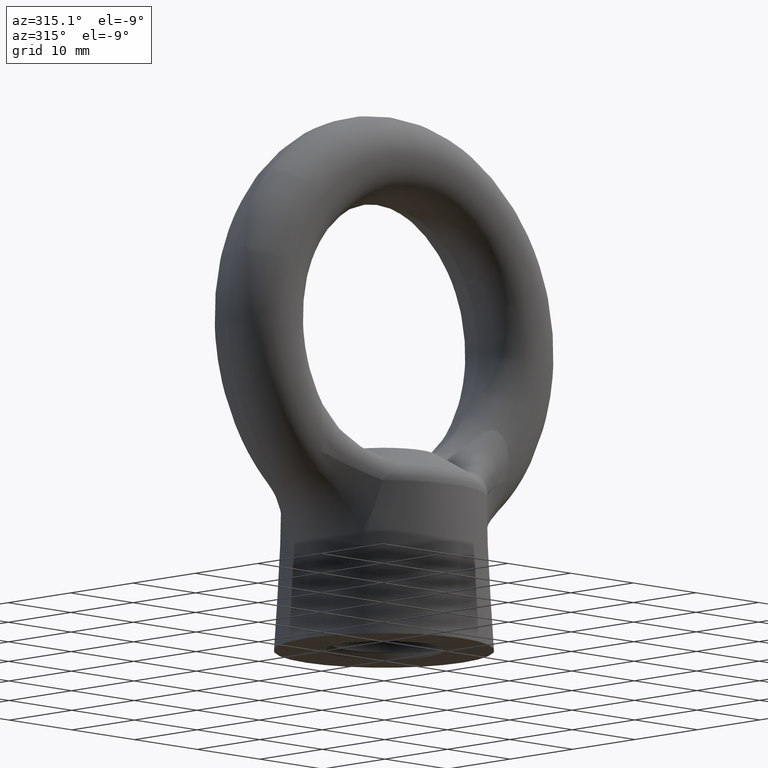
[diagram: clean part render]
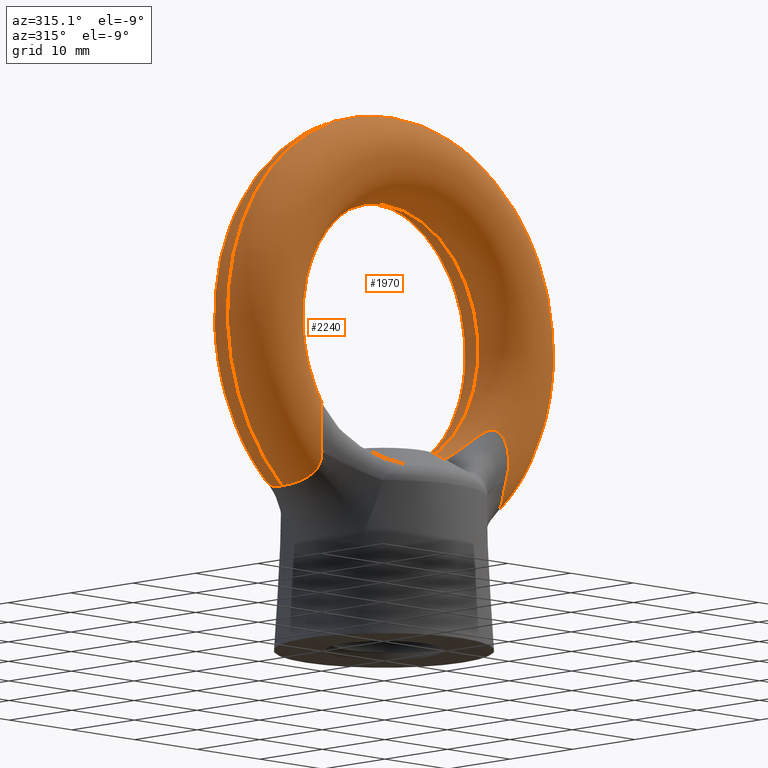
[diagram: same view with one multi-face feature highlighted, each face labeled with its STEP entity id]
A machine part, auxiliary view. The highlighted faces form ONE feature: a constant-radius fillet chain: 2 tangent blend faces with common blend radius 5 mm. The faces share edges in the B-rep.
Their STEP definitions:
[1] entity #1970 (Torus):
#1942 = EDGE_CURVE ( 'NONE', #1951, #1953, #2118, .T. ) ;
#1943 = ORIENTED_EDGE ( 'NONE', *, *, #1944, .T. ) ;
#1944 = EDGE_CURVE ( 'NONE', #1953, #1945, #2095, .T. ) ;
#1945 = VERTEX_POINT ( 'NONE', #2096 ) ;
#1946 = ORIENTED_EDGE ( 'NONE', *, *, #1947, .T. ) ;
#1947 = EDGE_CURVE ( 'NONE', #1945, #1948, #2052, .T. ) ;
#1948 = VERTEX_POINT ( 'NONE', #2051 ) ;
#1949 = ORIENTED_EDGE ( 'NONE', *, *, #1950, .T. ) ;
#1950 = EDGE_CURVE ( 'NONE', #1975, #1951, #2050, .T. ) ;
#1951 = VERTEX_POINT ( 'NONE', #2609 ) ;
#1952 = ORIENTED_EDGE ( 'NONE', *, *, #1942, .T. ) ;
#1953 = VERTEX_POINT ( 'NONE', #2610 ) ;
#1970 = ADVANCED_FACE ( 'NONE', ( #2634 ), #2645, .T. ) ;
#1971 = EDGE_LOOP ( 'NONE', ( #1972, #1949, #1952, #1943, #1946, #1982, #1985, #1988 ) ) ;
#1972 = ORIENTED_EDGE ( 'NONE', *, *, #1973, .T. ) ;
#1973 = EDGE_CURVE ( 'NONE', #1974, #1975, #2648, .T. ) ;
#1974 = VERTEX_POINT ( 'NONE', #2649 ) ;
#1975 = VERTEX_POINT ( 'NONE', #2650 ) ;
#1982 = ORIENTED_EDGE ( 'NONE', *, *, #1983, .F. ) ;
#1983 = EDGE_CURVE ( 'NONE', #1984, #1948, #2680, .T. ) ;
#1984 = VERTEX_POINT ( 'NONE', #2675 ) ;
#1985 = ORIENTED_EDGE ( 'NONE', *, *, #1986, .T. ) ;
#1986 = EDGE_CURVE ( 'NONE', #1984, #1987, #2674, .T. ) ;
#1987 = VERTEX_POINT ( 'NONE', #2673 ) ;
#1988 = ORIENTED_EDGE ( 'NONE', *, *, #1989, .T. ) ;
#1989 = EDGE_CURVE ( 'NONE', #1987, #1974, #2666, .T. ) ;
#2039 = DIRECTION ( 'NONE',  ( 0.0000000000000000000, 0.0000000000000000000, -1.000000000000000000 ) ) ;
#2040 = DIRECTION ( 'NONE',  ( 0.0000000000000000000, -1.000000000000000000, 0.0000000000000000000 ) ) ;
#2041 = CARTESIAN_POINT ( 'NONE',  ( 0.0000000000000000000, 0.0000000000000000000, 0.0000000000000000000 ) ) ;
#2042 = AXIS2_PLACEMENT_3D ( 'NONE', #2041, #2040, #2039 ) ;
#2044 = CARTESIAN_POINT ( 'NONE',  ( -6.000000000000000000, 0.0000000000000000000, -13.74772600000000000 ) ) ;
#2045 = CARTESIAN_POINT ( 'NONE',  ( -6.000001053483439200, -0.3504006684949155800, -13.74772662118588700 ) ) ;
#2046 = CARTESIAN_POINT ( 'NONE',  ( -6.020823813091262800, -0.7000108096584735100, -13.77859887902872800 ) ) ;
#2047 = CARTESIAN_POINT ( 'NONE',  ( -6.111031164038159600, -1.392009448283120500, -13.90070011183858500 ) ) ;
#2048 = CARTESIAN_POINT ( 'NONE',  ( -6.179245267279329200, -1.723825696552171000, -13.98982054532003800 ) ) ;
#2049 = CARTESIAN_POINT ( 'NONE',  ( -6.275957843287599800, -2.041516427262265200, -14.10231531665424000 ) ) ;
#2050 = CIRCLE ( 'NONE', #2042, 25.00000000000000000 ) ;
#2051 = CARTESIAN_POINT ( 'NONE',  ( -6.000000000000000000, 0.0000000000000000000, -13.74772600000000000 ) ) ;
#2052 = B_SPLINE_CURVE_WITH_KNOTS ( 'NONE', 3,
 ( #2049, #2048, #2047, #2046, #2045, #2044 ),
 .UNSPECIFIED., .F., .F.,
 ( 4, 2, 4 ),
 ( 0.006118880421807719100, 0.007165681863826861700, 0.008212483305846004400 ),
 .UNSPECIFIED. ) ;
#2053 = CARTESIAN_POINT ( 'NONE',  ( -6.275957843287599800, -2.041516427262265200, -14.10231531665424000 ) ) ;
#2054 = CARTESIAN_POINT ( 'NONE',  ( -7.464380430434879100, -2.117612692718215500, -13.61068639197021600 ) ) ;
#2055 = CARTESIAN_POINT ( 'NONE',  ( -8.574491774683616900, -2.219569914829596000, -12.99294310912969400 ) ) ;
#2056 = CARTESIAN_POINT ( 'NONE',  ( -10.14600203104698100, -2.460632772846056400, -11.92760678636409600 ) ) ;
#2057 = CARTESIAN_POINT ( 'NONE',  ( -10.65495594530064200, -2.555978702432028200, -11.54804303831719100 ) ) ;
#2058 = CARTESIAN_POINT ( 'NONE',  ( -11.40195170008093800, -2.742642528879202200, -10.96923635606276200 ) ) ;
#2059 = CARTESIAN_POINT ( 'NONE',  ( -11.64770598641046100, -2.812104536708752700, -10.77531281075047600 ) ) ;
#2060 = CARTESIAN_POINT ( 'NONE',  ( -12.13833255490675900, -2.974440291193269000, -10.39735897903072500 ) ) ;
#2061 = CARTESIAN_POINT ( 'NONE',  ( -12.38269268021770000, -3.066705127272793000, -10.21234248071219700 ) ) ;
#2062 = CARTESIAN_POINT ( 'NONE',  ( -12.76025384282492700, -3.238974660969921700, -9.965882244899035000 ) ) ;
#2063 = CARTESIAN_POINT ( 'NONE',  ( -12.88927141360312800, -3.302848360059870800, -9.888436531930478800 ) ) ;
#2064 = CARTESIAN_POINT ( 'NONE',  ( -13.15034356588402000, -3.445905336059170500, -9.759652248035307000 ) ) ;
#2065 = CARTESIAN_POINT ( 'NONE',  ( -13.28232192518950300, -3.524973401973400900, -9.707929309464558900 ) ) ;
#2066 = CARTESIAN_POINT ( 'NONE',  ( -13.48404425954607300, -3.659416046847749900, -9.668775220218695000 ) ) ;
#2067 = CARTESIAN_POINT ( 'NONE',  ( -13.55039615733267400, -3.705881197996473200, -9.662611704175235500 ) ) ;
#2068 = CARTESIAN_POINT ( 'NONE',  ( -13.68140375028516200, -3.802180139386393000, -9.667157612592872000 ) ) ;
#2069 = CARTESIAN_POINT ( 'NONE',  ( -13.74641067326361600, -3.852352900519645700, -9.678225946742477600 ) ) ;
#2070 = CARTESIAN_POINT ( 'NONE',  ( -13.92997332696168100, -4.000216795976052200, -9.737884824263305800 ) ) ;
#2071 = CARTESIAN_POINT ( 'NONE',  ( -14.04100569835554100, -4.098307660333234500, -9.814911206435743600 ) ) ;
#2072 = CARTESIAN_POINT ( 'NONE',  ( -14.22936297753960700, -4.273127124851955100, -10.01230862838729700 ) ) ;
#2073 = CARTESIAN_POINT ( 'NONE',  ( -14.30950039655987300, -4.352105367715709300, -10.13329455354461200 ) ) ;
#2074 = CARTESIAN_POINT ( 'NONE',  ( -14.44677695509736600, -4.490556973526294000, -10.39223456852681000 ) ) ;
#2075 = CARTESIAN_POINT ( 'NONE',  ( -14.50540418297563900, -4.551607850472104900, -10.53283025820037200 ) ) ;
#2076 = CARTESIAN_POINT ( 'NONE',  ( -14.65778503148669100, -4.711853808687573400, -10.96565057400457000 ) ) ;
#2077 = CARTESIAN_POINT ( 'NONE',  ( -14.73087022105523900, -4.790838918664097600, -11.27307851373483200 ) ) ;
#2095 = B_SPLINE_CURVE_WITH_KNOTS ( 'NONE', 3,
 ( #2115, #2114, #2113, #2112, #2111, #2110, #2109, #2077, #2076, #2075, #2074, #2073, #2072, #2071, #2070, #2069, #2068, #2067, #2066, #2065, #2064, #2063, #2062, #2061, #2060, #2059, #2058, #2057, #2056, #2055, #2054, #2053 ),
 .UNSPECIFIED., .F., .F.,
 ( 4, 2, 2, 2, 2, 2, 2, 2, 2, 2, 2, 2, 2, 2, 2, 4 ),
 ( 0.0000000000000000000, 0.001927165762978911600, 0.002890748644468364800, 0.003854331525957818000, 0.004817914407447270800, 0.005299705848191995800, 0.005781497288936720100, 0.006263288729681444300, 0.006504184450053805500, 0.006745080170426167600, 0.007226871611170889200, 0.007708663051915610000, 0.008672245933405051500, 0.009635828814894494700, 0.01156299457787337100, 0.01541732610383112800 ),
 .UNSPECIFIED. ) ;
#2096 = CARTESIAN_POINT ( 'NONE',  ( -6.275957843287599800, -2.041516427262265200, -14.10231531665424000 ) ) ;
#2097 = CARTESIAN_POINT ( 'NONE',  ( -14.72252079769030100, -4.822966256266339800, -15.41865053517110000 ) ) ;
#2098 = CARTESIAN_POINT ( 'NONE',  ( -14.66584500833733000, -4.777352851073325200, -15.70342730237507600 ) ) ;
#2099 = CARTESIAN_POINT ( 'NONE',  ( -14.63065959441152900, -4.717490013537113400, -15.98932534710245300 ) ) ;
#2100 = CARTESIAN_POINT ( 'NONE',  ( -14.62933149644081600, -4.590624520949909000, -16.41085302286467900 ) ) ;
#2101 = CARTESIAN_POINT ( 'NONE',  ( -14.63747687860612800, -4.542579712863749300, -16.54841272255716000 ) ) ;
#2102 = CARTESIAN_POINT ( 'NONE',  ( -14.67216269132205600, -4.432346829349788700, -16.81652764048325500 ) ) ;
#2103 = CARTESIAN_POINT ( 'NONE',  ( -14.69912034541589900, -4.369444319924478600, -16.94817947437561800 ) ) ;
#2104 = CARTESIAN_POINT ( 'NONE',  ( -14.80375577084290700, -4.162345419551519000, -17.31908120581014300 ) ) ;
#2105 = CARTESIAN_POINT ( 'NONE',  ( -14.90509121214267600, -3.998861685004786000, -17.53734320561205000 ) ) ;
#2106 = CARTESIAN_POINT ( 'NONE',  ( -15.13897591451736700, -3.621554648195874000, -17.92116365886865000 ) ) ;
#2107 = CARTESIAN_POINT ( 'NONE',  ( -15.26553775429907500, -3.416375608865718700, -18.07922319295189700 ) ) ;
#2108 = CARTESIAN_POINT ( 'NONE',  ( -15.51313406340040400, -2.974296753357123600, -18.35089302173337300 ) ) ;
#2109 = CARTESIAN_POINT ( 'NONE',  ( -14.84219633354092400, -4.909700346262882300, -11.90064704881108400 ) ) ;
#2110 = CARTESIAN_POINT ( 'NONE',  ( -14.87943419269992200, -4.948878862597283000, -12.21868437074895800 ) ) ;
#2111 = CARTESIAN_POINT ( 'NONE',  ( -14.92495029048519200, -4.996124343496267000, -12.86136253516889600 ) ) ;
#2112 = CARTESIAN_POINT ( 'NONE',  ( -14.93284021059053400, -5.003853662491141400, -13.18725509966724400 ) ) ;
#2113 = CARTESIAN_POINT ( 'NONE',  ( -14.91444565767801400, -4.987034312307317300, -14.15394021009256800 ) ) ;
#2114 = CARTESIAN_POINT ( 'NONE',  ( -14.84761841200832300, -4.923646427388950600, -14.79007712495285000 ) ) ;
#2115 = CARTESIAN_POINT ( 'NONE',  ( -14.72252079769030100, -4.822966256266339800, -15.41865053517110000 ) ) ;
#2118 = B_SPLINE_CURVE_WITH_KNOTS ( 'NONE', 3,
 ( #2126, #2125, #2124, #2123, #2122, #2121, #2120, #2119, #2108, #2107, #2106, #2105, #2104, #2103, #2102, #2101, #2100, #2099, #2098, #2097 ),
 .UNSPECIFIED., .F., .F.,
 ( 4, 2, 2, 2, 2, 2, 2, 2, 2, 4 ),
 ( 0.006961524194319999500, 0.007831742750575873200, 0.008701961306831746900, 0.009572179863087622300, 0.01044239841934349600, 0.01131261697559936600, 0.01218283553185523800, 0.01261794480998317300, 0.01305305408811110800, 0.01392327264436697000 ),
 .UNSPECIFIED. ) ;
#2119 = CARTESIAN_POINT ( 'NONE',  ( -15.63499233852098900, -2.736211218861019500, -18.46465395723157200 ) ) ;
#2120 = CARTESIAN_POINT ( 'NONE',  ( -15.85610475510484600, -2.231608999120303000, -18.65585043016069000 ) ) ;
#2121 = CARTESIAN_POINT ( 'NONE',  ( -15.95326624098749100, -1.970336504357997700, -18.73151674880357800 ) ) ;
#2122 = CARTESIAN_POINT ( 'NONE',  ( -16.11353689105055800, -1.429708466328234700, -18.85170928223997300 ) ) ;
#2123 = CARTESIAN_POINT ( 'NONE',  ( -16.17703360310367000, -1.148248934352556800, -18.89634054225160800 ) ) ;
#2124 = CARTESIAN_POINT ( 'NONE',  ( -16.26213081235134400, -0.5753946063262697100, -18.95542659569439400 ) ) ;
#2125 = CARTESIAN_POINT ( 'NONE',  ( -16.28345109991528600, -0.2881152364216809600, -18.96969215028720200 ) ) ;
#2126 = CARTESIAN_POINT ( 'NONE',  ( -16.28345109991528600, -9.641193019889547100E-014, -18.96969215028720200 ) ) ;
#2609 = CARTESIAN_POINT ( 'NONE',  ( -16.28345109991528600, -9.641193019889547100E-014, -18.96969215028720200 ) ) ;
#2610 = CARTESIAN_POINT ( 'NONE',  ( -14.72252079769030100, -4.822966256266339800, -15.41865053517110000 ) ) ;
#2634 = FACE_OUTER_BOUND ( 'NONE', #1971, .T. ) ;
#2645 = TOROIDAL_SURFACE ( 'NONE', #2739, 20.00000000000000000, 5.000000000000000000 ) ;
#2646 = DIRECTION ( 'NONE',  ( 0.0000000000000000000, -1.000000000000000000, 0.0000000000000000000 ) ) ;
#2647 = DIRECTION ( 'NONE',  ( 0.0000000000000000000, 0.0000000000000000000, -1.000000000000000000 ) ) ;
#2648 = B_SPLINE_CURVE_WITH_KNOTS ( 'NONE', 3,
 ( #2662, #2661, #2660, #2659, #2658, #2657, #2656, #2655, #2654, #2653, #2652, #2651, #2780, #2779, #2778, #2777, #2776, #2775 ),
 .UNSPECIFIED., .F., .F.,
 ( 4, 2, 2, 2, 2, 2, 2, 2, 4 ),
 ( 0.0000000000000000000, 0.0008701905242869358800, 0.001740381048573871800, 0.002610571572860807700, 0.003480762097147744400, 0.004350952621434683200, 0.005221143145721622400, 0.006091333670008559900, 0.006961524194295496500 ),
 .UNSPECIFIED. ) ;
#2649 = CARTESIAN_POINT ( 'NONE',  ( 14.72252079769030100, -4.822966256266339800, -15.41865053517104800 ) ) ;
#2650 = CARTESIAN_POINT ( 'NONE',  ( 16.28345109991528300, -2.424147133360036500E-011, -18.96969215028720200 ) ) ;
#2651 = CARTESIAN_POINT ( 'NONE',  ( 15.85430635181205100, -2.236049821398868900, -18.65437107218623000 ) ) ;
#2652 = CARTESIAN_POINT ( 'NONE',  ( 15.63391824742555900, -2.738321316443311100, -18.46364846882740500 ) ) ;
#2653 = CARTESIAN_POINT ( 'NONE',  ( 15.51282146924236300, -2.974989548728978600, -18.35068873651807300 ) ) ;
#2654 = CARTESIAN_POINT ( 'NONE',  ( 15.26334488783220800, -3.420154909407108400, -18.07667701494963100 ) ) ;
#2655 = CARTESIAN_POINT ( 'NONE',  ( 15.13327025881231900, -3.630757042081348200, -17.91306526511912300 ) ) ;
#2656 = CARTESIAN_POINT ( 'NONE',  ( 14.90199614143278600, -4.003856811007348200, -17.53095009435077100 ) ) ;
#2657 = CARTESIAN_POINT ( 'NONE',  ( 14.80163675530453200, -4.165873622868802300, -17.31409923680522300 ) ) ;
#2658 = CARTESIAN_POINT ( 'NONE',  ( 14.66255968027750400, -4.442490943718602200, -16.81598362251870400 ) ) ;
#2659 = CARTESIAN_POINT ( 'NONE',  ( 14.62837347272316400, -4.551351486170172900, -16.54274709727237200 ) ) ;
#2660 = CARTESIAN_POINT ( 'NONE',  ( 14.63123142479118100, -4.718577204383408700, -15.98427406103347300 ) ) ;
#2661 = CARTESIAN_POINT ( 'NONE',  ( 14.66610376605384900, -4.777561102616096500, -15.70212713193466500 ) ) ;
#2662 = CARTESIAN_POINT ( 'NONE',  ( 14.72252079769030100, -4.822966256266339800, -15.41865053517104800 ) ) ;
#2663 = CARTESIAN_POINT ( 'NONE',  ( 7.472187154787400600, -2.118112567573418500, -13.60745689133614000 ) ) ;
#2664 = CARTESIAN_POINT ( 'NONE',  ( 6.275957843287589100, -2.041516427262265200, -14.10231531665424000 ) ) ;
#2666 = B_SPLINE_CURVE_WITH_KNOTS ( 'NONE', 3,
 ( #2664, #2663, #2769, #2768, #2767, #2766, #2765, #2764, #2763, #2762, #2761, #2760, #2759, #2758, #2757, #2756, #2755, #2754, #2753, #2752, #2751, #2750, #2749, #2748, #2747, #2746, #2745, #2744, #2743, #2742, #2741, #2740 ),
 .UNSPECIFIED., .F., .F.,
 ( 4, 2, 2, 2, 2, 2, 2, 2, 2, 2, 2, 2, 2, 2, 2, 4 ),
 ( 0.0000000000000000000, 0.003833914589347098400, 0.005750871884020646000, 0.006709350531357417500, 0.007667829178694189800, 0.008147068502362572000, 0.008626307826030953400, 0.008865927487865146700, 0.009105547149699338300, 0.009584786473367726600, 0.01006402579703611700, 0.01054326512070450500, 0.01150174376804128300, 0.01246022241537806200, 0.01341870106271483800, 0.01533565835738839300 ),
 .UNSPECIFIED. ) ;
#2667 = CARTESIAN_POINT ( 'NONE',  ( 6.275957843287589100, -2.041516427262265200, -14.10231531665424000 ) ) ;
#2668 = CARTESIAN_POINT ( 'NONE',  ( 6.178498510641107400, -1.721372678838702900, -13.98895192801370300 ) ) ;
#2669 = CARTESIAN_POINT ( 'NONE',  ( 6.110860768015208500, -1.389994756660807300, -13.90045655270017400 ) ) ;
#2670 = CARTESIAN_POINT ( 'NONE',  ( 6.021490864335722100, -0.7058315180901160200, -13.77951462015350400 ) ) ;
#2671 = CARTESIAN_POINT ( 'NONE',  ( 6.000001057648353800, -0.3502639382569838200, -13.74772662717408300 ) ) ;
#2672 = CARTESIAN_POINT ( 'NONE',  ( 6.000000000000000000, 0.0000000000000000000, -13.74772599999995900 ) ) ;
#2673 = CARTESIAN_POINT ( 'NONE',  ( 6.275957843287589100, -2.041516427262265200, -14.10231531665424000 ) ) ;
#2674 = B_SPLINE_CURVE_WITH_KNOTS ( 'NONE', 3,
 ( #2672, #2671, #2670, #2669, #2668, #2667 ),
 .UNSPECIFIED., .F., .F.,
 ( 4, 2, 4 ),
 ( 0.008212483305846007800, 0.009258875969322748500, 0.01030526863279948900 ),
 .UNSPECIFIED. ) ;
#2675 = CARTESIAN_POINT ( 'NONE',  ( 6.000000000000000000, 0.0000000000000000000, -13.74772599999995900 ) ) ;
#2676 = DIRECTION ( 'NONE',  ( 0.0000000000000000000, 0.0000000000000000000, -1.000000000000000000 ) ) ;
#2677 = DIRECTION ( 'NONE',  ( 0.0000000000000000000, -1.000000000000000000, 0.0000000000000000000 ) ) ;
#2678 = CARTESIAN_POINT ( 'NONE',  ( 0.0000000000000000000, 6.123031769111886300E-016, 0.0000000000000000000 ) ) ;
#2679 = AXIS2_PLACEMENT_3D ( 'NONE', #2678, #2677, #2676 ) ;
#2680 = CIRCLE ( 'NONE', #2679, 15.00000000000000000 ) ;
#2738 = CARTESIAN_POINT ( 'NONE',  ( 0.0000000000000000000, 0.0000000000000000000, 0.0000000000000000000 ) ) ;
#2739 = AXIS2_PLACEMENT_3D ( 'NONE', #2738, #2646, #2647 ) ;
#2740 = CARTESIAN_POINT ( 'NONE',  ( 14.72252079769030100, -4.822966256266339800, -15.41865053517104800 ) ) ;
#2741 = CARTESIAN_POINT ( 'NONE',  ( 14.84699192031753000, -4.923142218807677200, -14.79322503485260800 ) ) ;
#2742 = CARTESIAN_POINT ( 'NONE',  ( 14.91437407874086700, -4.986964214495990300, -14.15033561141517100 ) ) ;
#2743 = CARTESIAN_POINT ( 'NONE',  ( 14.93280617157936900, -5.003824849340754000, -13.19270607076210000 ) ) ;
#2744 = CARTESIAN_POINT ( 'NONE',  ( 14.92534589907962200, -4.996522426846152800, -12.87380409717749800 ) ) ;
#2745 = CARTESIAN_POINT ( 'NONE',  ( 14.88117356690125000, -4.950696289192686500, -12.23670865798053800 ) ) ;
#2746 = CARTESIAN_POINT ( 'NONE',  ( 14.84416135551483700, -4.911782550447052900, -11.91596761111846400 ) ) ;
#2747 = CARTESIAN_POINT ( 'NONE',  ( 14.73512417999284500, -4.795395770896032400, -11.29304977852185300 ) ) ;
#2748 = CARTESIAN_POINT ( 'NONE',  ( 14.66424978608363200, -4.718802551309449800, -10.98970150071182100 ) ) ;
#2749 = CARTESIAN_POINT ( 'NONE',  ( 14.51408363811425600, -4.560668786097521900, -10.55496314559144900 ) ) ;
#2750 = CARTESIAN_POINT ( 'NONE',  ( 14.45694145201617100, -4.501054801352157900, -10.41513765315275800 ) ) ;
#2751 = CARTESIAN_POINT ( 'NONE',  ( 14.32287714716559000, -4.365390169574498100, -10.15539633988672500 ) ) ;
#2752 = CARTESIAN_POINT ( 'NONE',  ( 14.24442553985255200, -4.287724861736993600, -10.03294312786697500 ) ) ;
#2753 = CARTESIAN_POINT ( 'NONE',  ( 14.06002814782225100, -4.115449802587329800, -9.830814744492208500 ) ) ;
#2754 = CARTESIAN_POINT ( 'NONE',  ( 13.95107292998388900, -4.018358187132762700, -9.750092098752279700 ) ) ;
#2755 = CARTESIAN_POINT ( 'NONE',  ( 13.77050982104817200, -3.871343038238842700, -9.684082462623269500 ) ) ;
#2756 = CARTESIAN_POINT ( 'NONE',  ( 13.70655350336345700, -3.821378285055387500, -9.670687745704825000 ) ) ;
#2757 = CARTESIAN_POINT ( 'NONE',  ( 13.57606319705900700, -3.724268281963215400, -9.661706779109692900 ) ) ;
#2758 = CARTESIAN_POINT ( 'NONE',  ( 13.51014031328950300, -3.677516902615318300, -9.665868992098564800 ) ) ;
#2759 = CARTESIAN_POINT ( 'NONE',  ( 13.31014779231741900, -3.542455309985044200, -9.699284343762476700 ) ) ;
#2760 = CARTESIAN_POINT ( 'NONE',  ( 13.17660573178381100, -3.461327356116922000, -9.748858697209737300 ) ) ;
#2761 = CARTESIAN_POINT ( 'NONE',  ( 12.91652579003760300, -3.316943218285421500, -9.873231660203606100 ) ) ;
#2762 = CARTESIAN_POINT ( 'NONE',  ( 12.78740408833906800, -3.252144429731207000, -9.949277208171011500 ) ) ;
#2763 = CARTESIAN_POINT ( 'NONE',  ( 12.40734235102528300, -3.076608297474285400, -10.19432973658251400 ) ) ;
#2764 = CARTESIAN_POINT ( 'NONE',  ( 12.16132466835268600, -2.982783684948810100, -10.37997662712340300 ) ) ;
#2765 = CARTESIAN_POINT ( 'NONE',  ( 11.66707119319747000, -2.817836448227347000, -10.76009202470354100 ) ) ;
#2766 = CARTESIAN_POINT ( 'NONE',  ( 11.41907790785133500, -2.747298640502932300, -10.95583370094991000 ) ) ;
#2767 = CARTESIAN_POINT ( 'NONE',  ( 10.66977115892488100, -2.558963557144132000, -11.53681581326863900 ) ) ;
#2768 = CARTESIAN_POINT ( 'NONE',  ( 10.16135242115444400, -2.463325429355721000, -11.91660108581860600 ) ) ;
#2769 = CARTESIAN_POINT ( 'NONE',  ( 8.586629876469283200, -2.220769494238632500, -12.98588962887645500 ) ) ;
#2775 = CARTESIAN_POINT ( 'NONE',  ( 16.28345109991528300, -2.424147133360036500E-011, -18.96969215028720200 ) ) ;
#2776 = CARTESIAN_POINT ( 'NONE',  ( 16.28345109991409200, -0.2881059555160441800, -18.96969215028638800 ) ) ;
#2777 = CARTESIAN_POINT ( 'NONE',  ( 16.26169047657985800, -0.5796358468904664300, -18.95512738937299000 ) ) ;
#2778 = CARTESIAN_POINT ( 'NONE',  ( 16.17633058278103800, -1.151687238406585300, -18.89584578719895400 ) ) ;
#2779 = CARTESIAN_POINT ( 'NONE',  ( 16.11353423700545300, -1.429759351141434400, -18.85170930974551200 ) ) ;
#2780 = CARTESIAN_POINT ( 'NONE',  ( 15.95311681649572200, -1.970798574014857900, -18.73140267040128400 ) ) ;
[2] entity #2240 (Torus):
#1948 = VERTEX_POINT ( 'NONE', #2051 ) ;
#1950 = EDGE_CURVE ( 'NONE', #1975, #1951, #2050, .T. ) ;
#1951 = VERTEX_POINT ( 'NONE', #2609 ) ;
#1975 = VERTEX_POINT ( 'NONE', #2650 ) ;
#1983 = EDGE_CURVE ( 'NONE', #1984, #1948, #2680, .T. ) ;
#1984 = VERTEX_POINT ( 'NONE', #2675 ) ;
#1996 = VERTEX_POINT ( 'NONE', #2728 ) ;
#2039 = DIRECTION ( 'NONE',  ( 0.0000000000000000000, 0.0000000000000000000, -1.000000000000000000 ) ) ;
#2040 = DIRECTION ( 'NONE',  ( 0.0000000000000000000, -1.000000000000000000, 0.0000000000000000000 ) ) ;
#2041 = CARTESIAN_POINT ( 'NONE',  ( 0.0000000000000000000, 0.0000000000000000000, 0.0000000000000000000 ) ) ;
#2042 = AXIS2_PLACEMENT_3D ( 'NONE', #2041, #2040, #2039 ) ;
#2050 = CIRCLE ( 'NONE', #2042, 25.00000000000000000 ) ;
#2051 = CARTESIAN_POINT ( 'NONE',  ( -6.000000000000000000, 0.0000000000000000000, -13.74772600000000000 ) ) ;
#2089 = VERTEX_POINT ( 'NONE', #11159 ) ;
#2091 = EDGE_CURVE ( 'NONE', #1948, #2089, #11156, .T. ) ;
#2117 = EDGE_CURVE ( 'NONE', #1996, #1984, #11125, .T. ) ;
#2201 = EDGE_CURVE ( 'NONE', #2089, #2202, #2290, .T. ) ;
#2202 = VERTEX_POINT ( 'NONE', #2289 ) ;
#2203 = ORIENTED_EDGE ( 'NONE', *, *, #2204, .T. ) ;
#2204 = EDGE_CURVE ( 'NONE', #2202, #1951, #2337, .T. ) ;
#2240 = ADVANCED_FACE ( 'NONE', ( #2490 ), #2489, .T. ) ;
#2241 = EDGE_LOOP ( 'NONE', ( #2242, #2243, #2246, #2248, #2249, #2250, #2251, #2203 ) ) ;
#2242 = ORIENTED_EDGE ( 'NONE', *, *, #1950, .F. ) ;
#2243 = ORIENTED_EDGE ( 'NONE', *, *, #2244, .T. ) ;
#2244 = EDGE_CURVE ( 'NONE', #1975, #2245, #2484, .T. ) ;
#2245 = VERTEX_POINT ( 'NONE', #2483 ) ;
#2246 = ORIENTED_EDGE ( 'NONE', *, *, #2247, .T. ) ;
#2247 = EDGE_CURVE ( 'NONE', #2245, #1996, #2479, .T. ) ;
#2248 = ORIENTED_EDGE ( 'NONE', *, *, #2117, .T. ) ;
#2249 = ORIENTED_EDGE ( 'NONE', *, *, #1983, .T. ) ;
#2250 = ORIENTED_EDGE ( 'NONE', *, *, #2091, .T. ) ;
#2251 = ORIENTED_EDGE ( 'NONE', *, *, #2201, .T. ) ;
#2283 = CARTESIAN_POINT ( 'NONE',  ( -11.41907790785134900, 2.747298640502938000, -10.95583370094989600 ) ) ;
#2284 = CARTESIAN_POINT ( 'NONE',  ( -10.66977115892489500, 2.558963557144135600, -11.53681581326862600 ) ) ;
#2285 = CARTESIAN_POINT ( 'NONE',  ( -10.16135242115445800, 2.463325429355726300, -11.91660108581859800 ) ) ;
#2286 = CARTESIAN_POINT ( 'NONE',  ( -8.586629876469297400, 2.220769494238635100, -12.98588962887645500 ) ) ;
#2287 = CARTESIAN_POINT ( 'NONE',  ( -7.472187154787416600, 2.118112567573425100, -13.60745689133614000 ) ) ;
#2288 = CARTESIAN_POINT ( 'NONE',  ( -6.275957843287599800, 2.041516427262270100, -14.10231531665424000 ) ) ;
#2289 = CARTESIAN_POINT ( 'NONE',  ( -14.72252079769030100, 4.822966256266339800, -15.41865053517104800 ) ) ;
#2290 = B_SPLINE_CURVE_WITH_KNOTS ( 'NONE', 3,
 ( #2288, #2287, #2286, #2285, #2284, #2283, #2364, #2363, #2362, #2361, #2360, #2359, #2358, #2357, #2356, #2355, #2354, #2353, #2352, #2351, #2350, #2349, #2348, #2347, #2346, #2345, #2344, #2343, #2342, #2341, #2340, #2339 ),
 .UNSPECIFIED., .F., .F.,
 ( 4, 2, 2, 2, 2, 2, 2, 2, 2, 2, 2, 2, 2, 2, 2, 4 ),
 ( 0.0000000000000000000, 0.003833914589347104900, 0.005750871884020656400, 0.006709350531357432200, 0.007667829178694209700, 0.008147068502362598100, 0.008626307826030986400, 0.008865927487865179700, 0.009105547149699374700, 0.009584786473367763000, 0.01006402579703615100, 0.01054326512070454000, 0.01150174376804131500, 0.01246022241537809000, 0.01341870106271486600, 0.01533565835738842300 ),
 .UNSPECIFIED. ) ;
#2323 = CARTESIAN_POINT ( 'NONE',  ( -15.26334488783713200, 3.420154909398888300, -18.07667701495563200 ) ) ;
#2324 = CARTESIAN_POINT ( 'NONE',  ( -15.13327025881671500, 3.630757042074266700, -17.91306526512529700 ) ) ;
#2325 = CARTESIAN_POINT ( 'NONE',  ( -14.90199614143570800, 4.003856811002618700, -17.53095009435669700 ) ) ;
#2326 = CARTESIAN_POINT ( 'NONE',  ( -14.80163675530667600, 4.165873622865060400, -17.31409923681091500 ) ) ;
#2327 = CARTESIAN_POINT ( 'NONE',  ( -14.66255968027829000, 4.442490943716500800, -16.81598362252353600 ) ) ;
#2328 = CARTESIAN_POINT ( 'NONE',  ( -14.62837347272338700, 4.551351486168814900, -16.54274709727628000 ) ) ;
#2329 = CARTESIAN_POINT ( 'NONE',  ( -14.63123142479094200, 4.718577204382995700, -15.98427406103545700 ) ) ;
#2330 = CARTESIAN_POINT ( 'NONE',  ( -14.66610376605364900, 4.777561102615938400, -15.70212713193567000 ) ) ;
#2335 = CARTESIAN_POINT ( 'NONE',  ( -14.72252079769030100, 4.822966256266339800, -15.41865053517104800 ) ) ;
#2337 = B_SPLINE_CURVE_WITH_KNOTS ( 'NONE', 3,
 ( #2335, #2330, #2329, #2328, #2327, #2326, #2325, #2324, #2323, #2399, #2398, #2397, #2396, #2395, #2394, #2393, #2392, #2391 ),
 .UNSPECIFIED., .F., .F.,
 ( 4, 2, 2, 2, 2, 2, 2, 2, 4 ),
 ( 0.0000000000000000000, 0.0008701905242900003700, 0.001740381048580000700, 0.002610571572870000900, 0.003480762097160001500, 0.004350952621450000800, 0.005221143145740000100, 0.006091333670029999400, 0.006961524194319999500 ),
 .UNSPECIFIED. ) ;
#2339 = CARTESIAN_POINT ( 'NONE',  ( -14.72252079769030100, 4.822966256266339800, -15.41865053517104800 ) ) ;
#2340 = CARTESIAN_POINT ( 'NONE',  ( -14.84699192031753000, 4.923142218807678100, -14.79322503485261300 ) ) ;
#2341 = CARTESIAN_POINT ( 'NONE',  ( -14.91437407874087600, 4.986964214495990300, -14.15033561141517500 ) ) ;
#2342 = CARTESIAN_POINT ( 'NONE',  ( -14.93280617157937600, 5.003824849340755800, -13.19270607076210800 ) ) ;
#2343 = CARTESIAN_POINT ( 'NONE',  ( -14.92534589907962500, 4.996522426846154600, -12.87380409717750700 ) ) ;
#2344 = CARTESIAN_POINT ( 'NONE',  ( -14.88117356690125200, 4.950696289192686500, -12.23670865798054500 ) ) ;
#2345 = CARTESIAN_POINT ( 'NONE',  ( -14.84416135551484000, 4.911782550447056500, -11.91596761111848200 ) ) ;
#2346 = CARTESIAN_POINT ( 'NONE',  ( -14.73512417999285000, 4.795395770896036000, -11.29304977852186000 ) ) ;
#2347 = CARTESIAN_POINT ( 'NONE',  ( -14.66424978608364400, 4.718802551309454300, -10.98970150071183500 ) ) ;
#2348 = CARTESIAN_POINT ( 'NONE',  ( -14.51408363811426700, 4.560668786097529900, -10.55496314559146700 ) ) ;
#2349 = CARTESIAN_POINT ( 'NONE',  ( -14.45694145201618100, 4.501054801352164100, -10.41513765315277800 ) ) ;
#2350 = CARTESIAN_POINT ( 'NONE',  ( -14.32287714716560200, 4.365390169574508800, -10.15539633988674200 ) ) ;
#2351 = CARTESIAN_POINT ( 'NONE',  ( -14.24442553985255200, 4.287724861737003400, -10.03294312786699300 ) ) ;
#2352 = CARTESIAN_POINT ( 'NONE',  ( -14.06002814782225800, 4.115449802587340500, -9.830814744492220900 ) ) ;
#2353 = CARTESIAN_POINT ( 'NONE',  ( -13.95107292998390500, 4.018358187132775200, -9.750092098752285000 ) ) ;
#2354 = CARTESIAN_POINT ( 'NONE',  ( -13.77050982104819500, 3.871343038238856500, -9.684082462623267800 ) ) ;
#2355 = CARTESIAN_POINT ( 'NONE',  ( -13.70655350336347300, 3.821378285055403000, -9.670687745704830400 ) ) ;
#2356 = CARTESIAN_POINT ( 'NONE',  ( -13.57606319705902800, 3.724268281963230900, -9.661706779109696400 ) ) ;
#2357 = CARTESIAN_POINT ( 'NONE',  ( -13.51014031328951900, 3.677516902615336500, -9.665868992098566500 ) ) ;
#2358 = CARTESIAN_POINT ( 'NONE',  ( -13.31014779231743400, 3.542455309985062000, -9.699284343762474900 ) ) ;
#2359 = CARTESIAN_POINT ( 'NONE',  ( -13.17660573178383400, 3.461327356116936600, -9.748858697209728400 ) ) ;
#2360 = CARTESIAN_POINT ( 'NONE',  ( -12.91652579003761900, 3.316943218285433000, -9.873231660203599000 ) ) ;
#2361 = CARTESIAN_POINT ( 'NONE',  ( -12.78740408833908800, 3.252144429731215400, -9.949277208170995500 ) ) ;
#2362 = CARTESIAN_POINT ( 'NONE',  ( -12.40734235102530500, 3.076608297474292500, -10.19432973658249800 ) ) ;
#2363 = CARTESIAN_POINT ( 'NONE',  ( -12.16132466835269800, 2.982783684948813200, -10.37997662712338700 ) ) ;
#2364 = CARTESIAN_POINT ( 'NONE',  ( -11.66707119319749200, 2.817836448227348800, -10.76009202470352500 ) ) ;
#2391 = CARTESIAN_POINT ( 'NONE',  ( -16.28345109991528600, -9.641193019889547100E-014, -18.96969215028720200 ) ) ;
#2392 = CARTESIAN_POINT ( 'NONE',  ( -16.28345109991529000, 0.2881059554926730900, -18.96969215028720200 ) ) ;
#2393 = CARTESIAN_POINT ( 'NONE',  ( -16.26169047658216700, 0.5796358468679231300, -18.95512738937456000 ) ) ;
#2394 = CARTESIAN_POINT ( 'NONE',  ( -16.17633058278503500, 1.151687238386844800, -18.89584578720177200 ) ) ;
#2395 = CARTESIAN_POINT ( 'NONE',  ( -16.11353423701007900, 1.429759351123022900, -18.85170930974884800 ) ) ;
#2396 = CARTESIAN_POINT ( 'NONE',  ( -15.95311681650125600, 1.970798573998991700, -18.73140267040557600 ) ) ;
#2397 = CARTESIAN_POINT ( 'NONE',  ( -15.85430635181788300, 2.236049821384214800, -18.65437107219097300 ) ) ;
#2398 = CARTESIAN_POINT ( 'NONE',  ( -15.63391824743136700, 2.738321316431448200, -18.46364846883273400 ) ) ;
#2399 = CARTESIAN_POINT ( 'NONE',  ( -15.51282146924797100, 2.974989548718390600, -18.35068873652364400 ) ) ;
#2475 = CARTESIAN_POINT ( 'NONE',  ( 16.11353689105519400, 1.429708466309784300, -18.85170928224332000 ) ) ;
#2476 = CARTESIAN_POINT ( 'NONE',  ( 16.17703360310770600, 1.148248934332444500, -18.89634054225444300 ) ) ;
#2477 = CARTESIAN_POINT ( 'NONE',  ( 16.26213081235359000, 0.5753946063040522600, -18.95542659569591500 ) ) ;
#2479 = B_SPLINE_CURVE_WITH_KNOTS ( 'NONE', 3,
 ( #2536, #2535, #2534, #2533, #2532, #2531, #2530, #2529, #2528, #2527, #2526, #2525, #2524, #2523, #2522, #2521, #2520, #2519, #2518, #2517, #2516, #2515, #2514, #2513, #2512, #2511, #2510, #2509, #2508, #2507, #2506, #2505 ),
 .UNSPECIFIED., .F., .F.,
 ( 4, 2, 2, 2, 2, 2, 2, 2, 2, 2, 2, 2, 2, 2, 2, 4 ),
 ( 0.0000000000000000000, 0.001927165762978870200, 0.002890748644468307600, 0.003854331525957745100, 0.004817914407447183200, 0.005299705848191900400, 0.005781497288936619400, 0.006263288729681337600, 0.006504184450053696200, 0.006745080170426055700, 0.007226871611170777300, 0.007708663051915499000, 0.008672245933404942200, 0.009635828814894387100, 0.01156299457787326800, 0.01541732610383102900 ),
 .UNSPECIFIED. ) ;
#2481 = CARTESIAN_POINT ( 'NONE',  ( 16.28345109991648300, 0.2881152363984068600, -18.96969215028801500 ) ) ;
#2482 = CARTESIAN_POINT ( 'NONE',  ( 16.28345109991528300, -2.424147133360036500E-011, -18.96969215028720200 ) ) ;
#2483 = CARTESIAN_POINT ( 'NONE',  ( 14.72252079769030100, 4.822966256266339800, -15.41865053517104800 ) ) ;
#2484 = B_SPLINE_CURVE_WITH_KNOTS ( 'NONE', 3,
 ( #2482, #2481, #2477, #2476, #2475, #2551, #2550, #2549, #2548, #2547, #2546, #2545, #2544, #2543, #2542, #2541, #2540, #2539, #2538, #2537 ),
 .UNSPECIFIED., .F., .F.,
 ( 4, 2, 2, 2, 2, 2, 2, 2, 2, 4 ),
 ( 0.006961524194295496500, 0.007831742750554435500, 0.008701961306813374400, 0.009572179863072311600, 0.01044239841933124900, 0.01131261697559019000, 0.01218283553184913000, 0.01261794480997860600, 0.01305305408810808100, 0.01392327264436702000 ),
 .UNSPECIFIED. ) ;
#2485 = DIRECTION ( 'NONE',  ( 0.0000000000000000000, 0.0000000000000000000, -1.000000000000000000 ) ) ;
#2486 = DIRECTION ( 'NONE',  ( 0.0000000000000000000, -1.000000000000000000, 0.0000000000000000000 ) ) ;
#2487 = CARTESIAN_POINT ( 'NONE',  ( 0.0000000000000000000, 0.0000000000000000000, 0.0000000000000000000 ) ) ;
#2488 = AXIS2_PLACEMENT_3D ( 'NONE', #2487, #2486, #2485 ) ;
#2489 = TOROIDAL_SURFACE ( 'NONE', #2488, 20.00000000000000000, 5.000000000000000000 ) ;
#2490 = FACE_OUTER_BOUND ( 'NONE', #2241, .T. ) ;
#2505 = CARTESIAN_POINT ( 'NONE',  ( 6.275957843287599800, 2.041516427262265200, -14.10231531665424000 ) ) ;
#2506 = CARTESIAN_POINT ( 'NONE',  ( 7.464380430434877300, 2.117612692718215100, -13.61068639197021000 ) ) ;
#2507 = CARTESIAN_POINT ( 'NONE',  ( 8.574491774683611600, 2.219569914829595100, -12.99294310912969600 ) ) ;
#2508 = CARTESIAN_POINT ( 'NONE',  ( 10.14600203104698100, 2.460632772846054600, -11.92760678636410400 ) ) ;
#2509 = CARTESIAN_POINT ( 'NONE',  ( 10.65495594530063700, 2.555978702432030400, -11.54804303831719500 ) ) ;
#2510 = CARTESIAN_POINT ( 'NONE',  ( 11.40195170008092900, 2.742642528879203100, -10.96923635606276500 ) ) ;
#2511 = CARTESIAN_POINT ( 'NONE',  ( 11.64770598641045400, 2.812104536708748700, -10.77531281075048000 ) ) ;
#2512 = CARTESIAN_POINT ( 'NONE',  ( 12.13833255490674300, 2.974440291193265500, -10.39735897903072400 ) ) ;
#2513 = CARTESIAN_POINT ( 'NONE',  ( 12.38269268021769100, 3.066705127272787700, -10.21234248071219500 ) ) ;
#2514 = CARTESIAN_POINT ( 'NONE',  ( 12.76025384282491300, 3.238974660969915000, -9.965882244899035000 ) ) ;
#2515 = CARTESIAN_POINT ( 'NONE',  ( 12.88927141360311900, 3.302848360059864600, -9.888436531930478800 ) ) ;
#2516 = CARTESIAN_POINT ( 'NONE',  ( 13.15034356588400900, 3.445905336059162500, -9.759652248035303400 ) ) ;
#2517 = CARTESIAN_POINT ( 'NONE',  ( 13.28232192518948600, 3.524973401973389800, -9.707929309464558900 ) ) ;
#2518 = CARTESIAN_POINT ( 'NONE',  ( 13.48404425954606700, 3.659416046847740600, -9.668775220218689600 ) ) ;
#2519 = CARTESIAN_POINT ( 'NONE',  ( 13.55039615733266200, 3.705881197996470100, -9.662611704175248000 ) ) ;
#2520 = CARTESIAN_POINT ( 'NONE',  ( 13.68140375028514900, 3.802180139386389000, -9.667157612592873800 ) ) ;
#2521 = CARTESIAN_POINT ( 'NONE',  ( 13.74641067326361600, 3.852352900519637300, -9.678225946742465200 ) ) ;
#2522 = CARTESIAN_POINT ( 'NONE',  ( 13.92997332696168100, 4.000216795976042400, -9.737884824263293400 ) ) ;
#2523 = CARTESIAN_POINT ( 'NONE',  ( 14.04100569835553500, 4.098307660333227400, -9.814911206435729300 ) ) ;
#2524 = CARTESIAN_POINT ( 'NONE',  ( 14.22936297753960800, 4.273127124851948900, -10.01230862838728100 ) ) ;
#2525 = CARTESIAN_POINT ( 'NONE',  ( 14.30950039655986700, 4.352105367715703100, -10.13329455354459100 ) ) ;
#2526 = CARTESIAN_POINT ( 'NONE',  ( 14.44677695509736500, 4.490556973526289600, -10.39223456852679600 ) ) ;
#2527 = CARTESIAN_POINT ( 'NONE',  ( 14.50540418297563900, 4.551607850472096900, -10.53283025820035600 ) ) ;
#2528 = CARTESIAN_POINT ( 'NONE',  ( 14.65778503148668900, 4.711853808687568100, -10.96565057400454900 ) ) ;
#2529 = CARTESIAN_POINT ( 'NONE',  ( 14.73087022105523600, 4.790838918664091400, -11.27307851373481100 ) ) ;
#2530 = CARTESIAN_POINT ( 'NONE',  ( 14.84219633354092200, 4.909700346262877000, -11.90064704881105400 ) ) ;
#2531 = CARTESIAN_POINT ( 'NONE',  ( 14.87943419269991600, 4.948878862597277700, -12.21868437074892500 ) ) ;
#2532 = CARTESIAN_POINT ( 'NONE',  ( 14.92495029048518900, 4.996124343496263400, -12.86136253516886500 ) ) ;
#2533 = CARTESIAN_POINT ( 'NONE',  ( 14.93284021059052500, 5.003853662491138700, -13.18725509966719800 ) ) ;
#2534 = CARTESIAN_POINT ( 'NONE',  ( 14.91444565767801400, 4.987034312307322600, -14.15394021009252900 ) ) ;
#2535 = CARTESIAN_POINT ( 'NONE',  ( 14.84761841200831800, 4.923646427388948000, -14.79007712495280200 ) ) ;
#2536 = CARTESIAN_POINT ( 'NONE',  ( 14.72252079769030100, 4.822966256266339800, -15.41865053517104800 ) ) ;
#2537 = CARTESIAN_POINT ( 'NONE',  ( 14.72252079769030100, 4.822966256266339800, -15.41865053517104800 ) ) ;
#2538 = CARTESIAN_POINT ( 'NONE',  ( 14.66584500833711900, 4.777352851073164400, -15.70342730237603000 ) ) ;
#2539 = CARTESIAN_POINT ( 'NONE',  ( 14.63065959441128400, 4.717490013536692400, -15.98932534710446900 ) ) ;
#2540 = CARTESIAN_POINT ( 'NONE',  ( 14.62933149644091900, 4.590624520948799700, -16.41085302286806400 ) ) ;
#2541 = CARTESIAN_POINT ( 'NONE',  ( 14.63747687860641900, 4.542579712862361100, -16.54841272256096100 ) ) ;
#2542 = CARTESIAN_POINT ( 'NONE',  ( 14.67216269132284800, 4.432346829347716600, -16.81652764048786300 ) ) ;
#2543 = CARTESIAN_POINT ( 'NONE',  ( 14.69912034541702500, 4.369444319921997900, -16.94817947438057000 ) ) ;
#2544 = CARTESIAN_POINT ( 'NONE',  ( 14.80375577084505600, 4.162345419547788700, -17.31908120581579200 ) ) ;
#2545 = CARTESIAN_POINT ( 'NONE',  ( 14.90509121214573600, 3.998861684999845500, -17.53734320561816800 ) ) ;
#2546 = CARTESIAN_POINT ( 'NONE',  ( 15.13897591452168900, 3.621554648188902300, -17.92116365887466500 ) ) ;
#2547 = CARTESIAN_POINT ( 'NONE',  ( 15.26553775430391500, 3.416375608857632300, -18.07922319295778700 ) ) ;
#2548 = CARTESIAN_POINT ( 'NONE',  ( 15.51313406340599600, 2.974296753346580900, -18.35089302173893000 ) ) ;
#2549 = CARTESIAN_POINT ( 'NONE',  ( 15.63499233852690500, 2.736211218848922900, -18.46465395723699400 ) ) ;
#2550 = CARTESIAN_POINT ( 'NONE',  ( 15.85610475511059500, 2.231608999105792400, -18.65585043016535500 ) ) ;
#2551 = CARTESIAN_POINT ( 'NONE',  ( 15.95326624099300800, 1.970336504342221600, -18.73151674880784900 ) ) ;
#2609 = CARTESIAN_POINT ( 'NONE',  ( -16.28345109991528600, -9.641193019889547100E-014, -18.96969215028720200 ) ) ;
#2650 = CARTESIAN_POINT ( 'NONE',  ( 16.28345109991528300, -2.424147133360036500E-011, -18.96969215028720200 ) ) ;
#2675 = CARTESIAN_POINT ( 'NONE',  ( 6.000000000000000000, 0.0000000000000000000, -13.74772599999995900 ) ) ;
#2676 = DIRECTION ( 'NONE',  ( 0.0000000000000000000, 0.0000000000000000000, -1.000000000000000000 ) ) ;
#2677 = DIRECTION ( 'NONE',  ( 0.0000000000000000000, -1.000000000000000000, 0.0000000000000000000 ) ) ;
#2678 = CARTESIAN_POINT ( 'NONE',  ( 0.0000000000000000000, 6.123031769111886300E-016, 0.0000000000000000000 ) ) ;
#2679 = AXIS2_PLACEMENT_3D ( 'NONE', #2678, #2677, #2676 ) ;
#2680 = CIRCLE ( 'NONE', #2679, 15.00000000000000000 ) ;
#2728 = CARTESIAN_POINT ( 'NONE',  ( 6.275957843287599800, 2.041516427262265200, -14.10231531665424000 ) ) ;
#11117 = CARTESIAN_POINT ( 'NONE',  ( 6.000000000000000000, 0.0000000000000000000, -13.74772599999995900 ) ) ;
#11118 = CARTESIAN_POINT ( 'NONE',  ( 6.000001053483438300, 0.3504006684949128600, -13.74772662118588700 ) ) ;
#11119 = CARTESIAN_POINT ( 'NONE',  ( 6.020823813091262800, 0.7000108096584717300, -13.77859887902872800 ) ) ;
#11120 = CARTESIAN_POINT ( 'NONE',  ( 6.111031164038159600, 1.392009448283119600, -13.90070011183858500 ) ) ;
#11121 = CARTESIAN_POINT ( 'NONE',  ( 6.179245267279329200, 1.723825696552170800, -13.98982054532003800 ) ) ;
#11122 = CARTESIAN_POINT ( 'NONE',  ( 6.275957843287599800, 2.041516427262265200, -14.10231531665424000 ) ) ;
#11125 = B_SPLINE_CURVE_WITH_KNOTS ( 'NONE', 3,
 ( #11122, #11121, #11120, #11119, #11118, #11117 ),
 .UNSPECIFIED., .F., .F.,
 ( 4, 2, 4 ),
 ( 0.006118880421807719100, 0.007165681863826863500, 0.008212483305846007800 ),
 .UNSPECIFIED. ) ;
#11130 = CARTESIAN_POINT ( 'NONE',  ( -6.275957843287599800, 2.041516427262270100, -14.10231531665424000 ) ) ;
#11131 = CARTESIAN_POINT ( 'NONE',  ( -6.178498510641108300, 1.721372678838709600, -13.98895192801370000 ) ) ;
#11132 = CARTESIAN_POINT ( 'NONE',  ( -6.110860768015212900, 1.389994756660810400, -13.90045655270017600 ) ) ;
#11135 = CARTESIAN_POINT ( 'NONE',  ( -6.021490864335722100, 0.7058315180901156800, -13.77951462015350300 ) ) ;
#11136 = CARTESIAN_POINT ( 'NONE',  ( -6.000001057648354700, 0.3502639382569823800, -13.74772662717408200 ) ) ;
#11137 = CARTESIAN_POINT ( 'NONE',  ( -6.000000000000000000, 0.0000000000000000000, -13.74772600000000000 ) ) ;
#11156 = B_SPLINE_CURVE_WITH_KNOTS ( 'NONE', 3,
 ( #11137, #11136, #11135, #11132, #11131, #11130 ),
 .UNSPECIFIED., .F., .F.,
 ( 4, 2, 4 ),
 ( 0.008212483305846004400, 0.009258875969322752000, 0.01030526863279949800 ),
 .UNSPECIFIED. ) ;
#11159 = CARTESIAN_POINT ( 'NONE',  ( -6.275957843287599800, 2.041516427262270100, -14.10231531665424000 ) ) ;